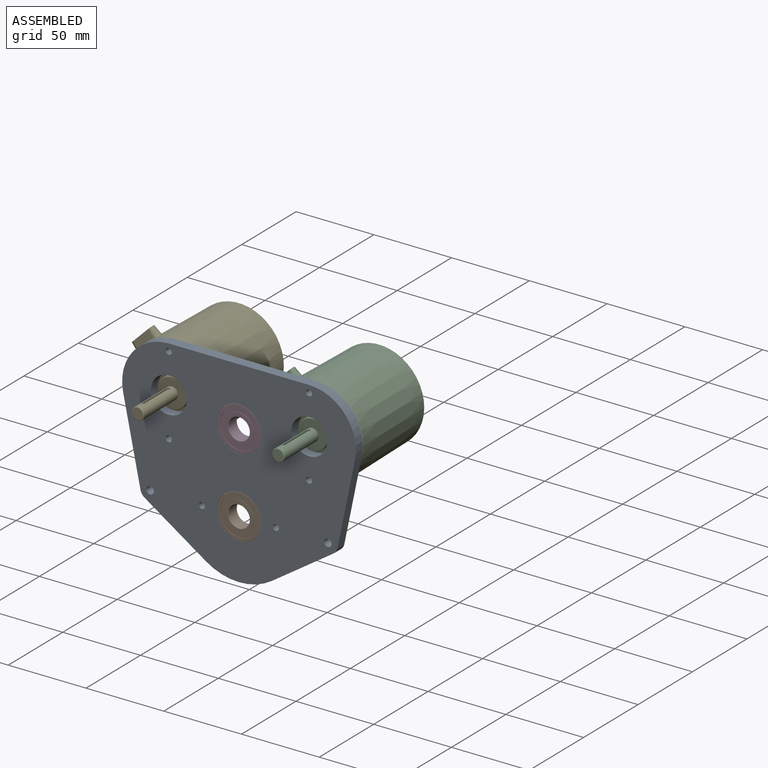
[diagram: assembled view]
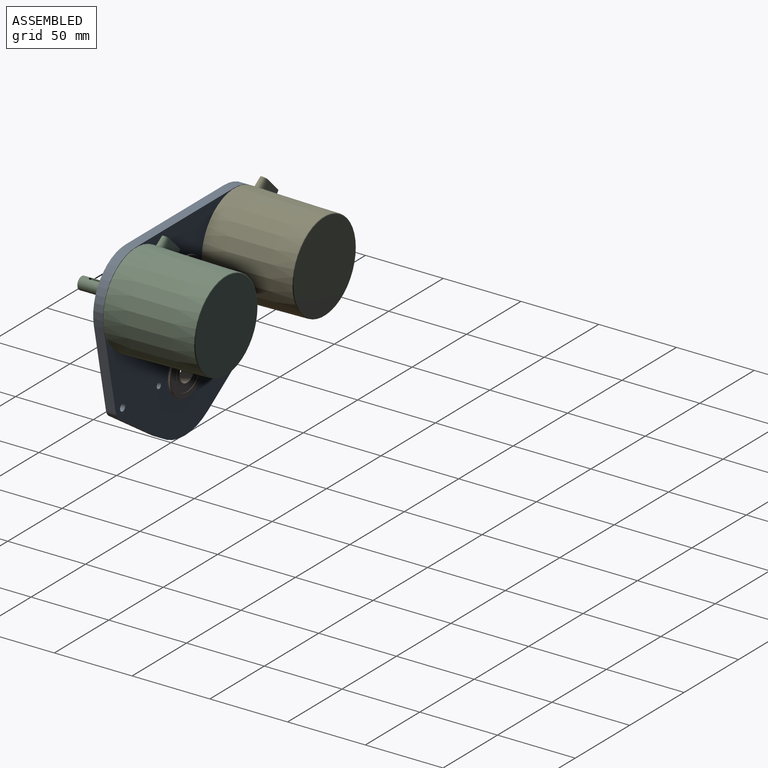
[diagram: assembled view, second angle]
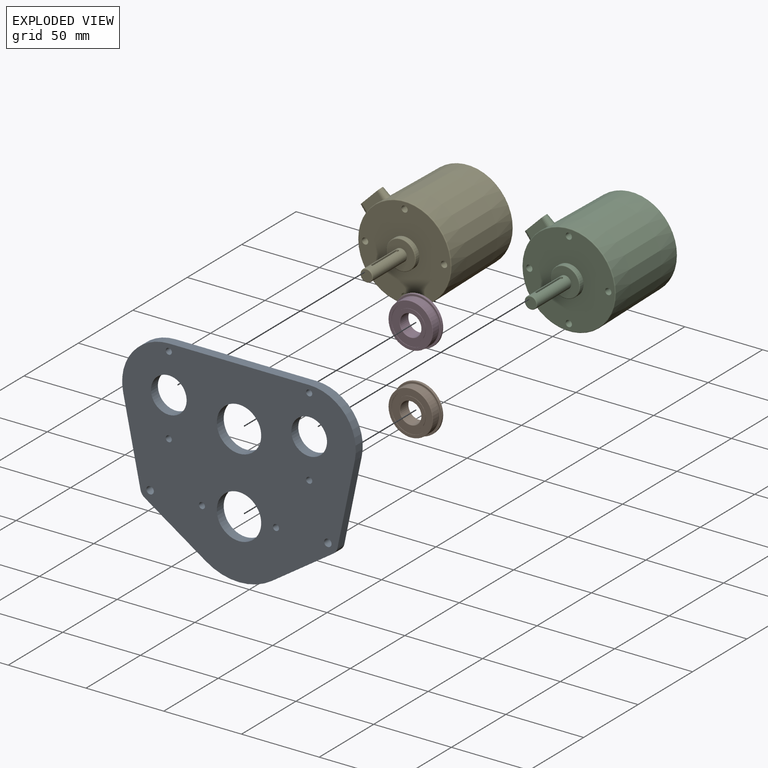
[diagram: exploded view]
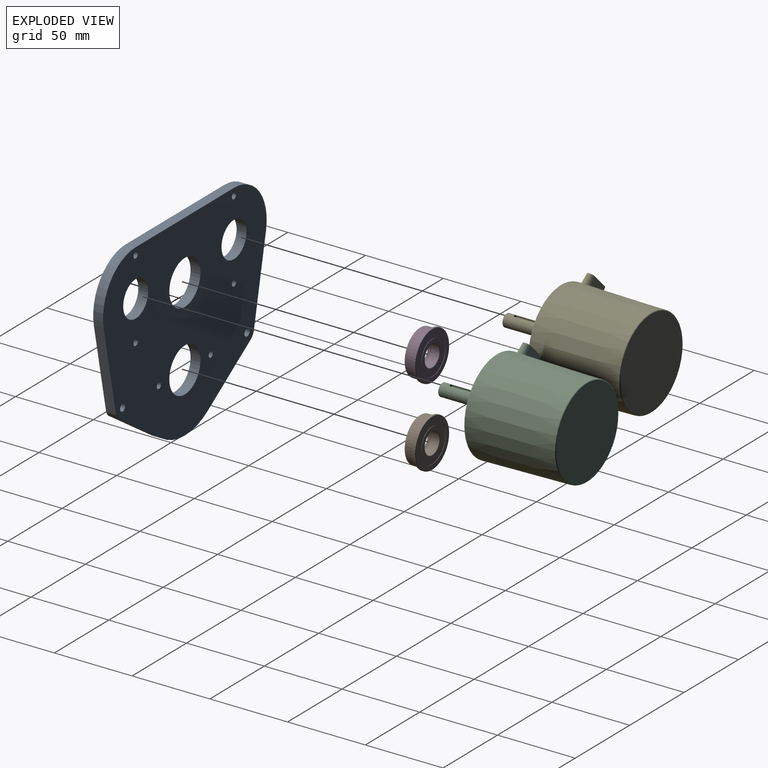
[diagram: exploded view, second angle]
ASSEMBLY  parts=5 mates=4
PART A: 24 faces, bbox 150.3x6.4x126.7 mm
  f0: plane 39.47x26.42mm, normal (-0.56,0,-0.83), area 301.6mm2, adj f1,f20,f22,f23
  f1: cylinder r=38.14mm len=42.43mm, axis (0,1,0), area 285.7mm2, adj f0,f2,f22,f23
  f2: plane 39.47x26.42mm, normal (0.56,0,-0.83), area 301.6mm2, adj f1,f3,f22,f23
  f3: cylinder r=6.35mm len=6.35mm, axis (0,1,0), area 31.3mm2, adj f2,f4,f22,f23
  f4: plane 53.77x11.15mm, normal (0.98,0,-0.2), area 348.7mm2, adj f3,f5,f22,f23
  f5: cylinder r=30mm len=36.09mm, axis (0,1,0), area 338.2mm2, adj f4,f6,f22,f23
  f6: plane 90.29x6.35mm, normal (0,0,1), area 573.3mm2, adj f5,f7,f22,f23
  f7: cylinder r=30mm len=36.09mm, axis (0,1,0), area 338.2mm2, adj f6,f8,f22,f23
  f8: plane 53.77x11.15mm, normal (-0.98,0,-0.2), area 348.7mm2, adj f7,f20,f22,f23
  f9: cylinder r=1.96mm len=6.35mm, axis (0,1,0), area 78mm2, adj f22,f23
  f10: cylinder r=1.96mm len=6.35mm, axis (0,1,0), area 78mm2, adj f22,f23
  f11: cylinder r=2.38mm len=6.35mm, axis (0,1,0), area 95mm2, adj f22,f23
  f12: cylinder r=14.29mm len=28.58mm, axis (0,1,0), area 570mm2, adj f22,f23
  f13: cylinder r=1.96mm len=6.35mm, axis (0,1,0), area 78mm2, adj f22,f23
  f14: cylinder r=1.96mm len=6.35mm, axis (0,1,0), area 78mm2, adj f22,f23
  f15: cylinder r=2.38mm len=6.35mm, axis (0,1,0), area 95mm2, adj f22,f23
  f16: cylinder r=11.47mm len=22.94mm, axis (0,1,0), area 457.6mm2, adj f22,f23
  f17: cylinder r=1.96mm len=6.35mm, axis (0,1,0), area 78mm2, adj f22,f23
  f18: cylinder r=1.96mm len=6.35mm, axis (0,1,0), area 78mm2, adj f22,f23
  f19: cylinder r=14.29mm len=28.58mm, axis (0,1,0), area 570mm2, adj f22,f23
  f20: cylinder r=6.35mm len=6.35mm, axis (0,1,0), area 31.3mm2, adj f0,f8,f22,f23
  f21: cylinder r=11.47mm len=22.94mm, axis (0,1,0), area 457.6mm2, adj f22,f23
  f22: plane 150.29x126.7mm, normal (0,-1,0), area 13078.5mm2, adj f0,f1,f2,f3,f4,f5,f6,f7
  f23: plane 150.29x126.7mm, normal (0,1,0), area 13078.5mm2, adj f0,f1,f2,f3,f4,f5,f6,f7
PART B: 21 faces, bbox 33.7x7.9x33.7 mm
  f0: torus R=14.29mm, axis (0,-1,0), area 46.4mm2, adj f10,f17
  f1: torus R=15.31mm, axis (0,1,0), area 38.2mm2, adj f9,f18
  f2: torus R=14.04mm, axis (0,-1,0), area 35mm2, adj f11,f16
  f3: torus R=15.31mm, axis (0,-1,0), area 38.2mm2, adj f9,f17
  f4: torus R=7.12mm, axis (0,1,0), area 17.2mm2, adj f6,f20
  f5: torus R=7.12mm, axis (0,-1,0), area 17.2mm2, adj f6,f14
  f6: cylinder r=6.88mm len=13.75mm, axis (0,-1,0), area 321.3mm2, adj f4,f5
  f7: cylinder r=9.6mm len=19.2mm, axis (0,-1,0), area 15.1mm2, adj f19,f20
  f8: cylinder r=12.29mm len=24.58mm, axis (0,-1,0), area 19.3mm2, adj f18,f19
  f9: cylinder r=15.56mm len=31.12mm, axis (0,-1,0), area 106.3mm2, adj f1,f3
  f10: cone r=14.29mm half-angle=30deg, axis (0,1,0), area 38.6mm2, adj f0,f11
  f11: cylinder r=14.29mm len=28.58mm, axis (0,-1,0), area 480.3mm2, adj f2,f10
  f12: cylinder r=12.29mm len=24.58mm, axis (0,-1,0), area 19.3mm2, adj f15,f16
  f13: cylinder r=9.6mm len=19.2mm, axis (0,-1,0), area 15.1mm2, adj f14,f15
  f14: plane 19.2x19.2mm, normal (0,1,0), area 130.2mm2, adj f5,f13
  f15: plane 24.58x24.58mm, normal (0,1,0), area 184.7mm2, adj f12,f13
  f16: plane 28.08x28.08mm, normal (0,1,0), area 144.7mm2, adj f2,f12
  f17: plane 30.62x30.62mm, normal (0,1,0), area 95.1mm2, adj f0,f3
  f18: plane 30.62x30.62mm, normal (0,-1,0), area 262.1mm2, adj f1,f8
  f19: plane 24.58x24.58mm, normal (0,-1,0), area 184.7mm2, adj f7,f8
  f20: plane 19.2x19.2mm, normal (0,-1,0), area 130.2mm2, adj f4,f7
PART C: 29 faces, bbox 65.1x93.4x65.1 mm
  f0: torus R=9.03mm, axis (0,-1,0), area 46.1mm2, adj f1,f2
  f1: cylinder r=9.53mm len=19.05mm, axis (0,1,0), area 179.5mm2, adj f0,f3
  f2: plane 18.05x18.05mm, normal (0,-1,0), area 205.6mm2, adj f0,f4
  f3: plane 58.98x58.98mm, normal (0,-1,0), area 2396.1mm2, adj f1,f5,f6,f7,f8,f9
  f4: cylinder r=4mm len=31mm, axis (0,1,0), area 732mm2, adj f2,f10,f11,f12,f13,f14
  f5: cylinder r=2.02mm len=5.5mm, axis (0,-1,0), area 69.8mm2, adj f3,f15
  f6: cylinder r=2.02mm len=5.5mm, axis (0,-1,0), area 69.8mm2, adj f3,f16
  f7: cylinder r=2.02mm len=5.5mm, axis (0,-1,0), area 69.8mm2, adj f3,f17
  f8: cylinder r=2.02mm len=5.5mm, axis (0,-1,0), area 69.8mm2, adj f3,f18
  f9: torus R=29.49mm, axis (0,-1,0), area 148.7mm2, adj f3,f19
  f10: cylinder r=1mm len=2mm, axis (0,0,1), area 3.4mm2, adj f4,f11,f13,f20
  f11: plane 22x1.02mm, normal (-1,0,0), area 22.5mm2, adj f4,f10,f12,f20
  f12: cylinder r=1mm len=2mm, axis (0,0,1), area 3.2mm2, adj f4,f11,f13,f20
  f13: plane 22x1.02mm, normal (1,0,0), area 22.5mm2, adj f4,f10,f12,f20
  f14: torus R=3.5mm, axis (0,-1,0), area 18.8mm2, adj f4,f21
  f15: cone r=2.02mm half-angle=59deg, axis (0,-1,0), area 14.9mm2, adj f5
  f16: cone r=2.02mm half-angle=59deg, axis (0,-1,0), area 14.9mm2, adj f6
  f17: cone r=2.02mm half-angle=59deg, axis (0,-1,0), area 14.9mm2, adj f7
  f18: cone r=2.02mm half-angle=59deg, axis (0,-1,0), area 14.9mm2, adj f8
  f19: cone r=30mm half-angle=1deg, axis (0,-1,0), area 10505mm2, adj f9,f22,f23,f24,f25,f26
  f20: plane 24x2mm, normal (0,0,1), area 47.1mm2, adj f10,f11,f12,f13
  f21: plane 7x7mm, normal (0,-1,0), area 38.5mm2, adj f14
  f22: cone r=2.8mm half-angle=5deg, axis (0.71,-0.02,-0.71), area 51.9mm2, adj f19,f23,f25,f28
  f23: plane 13.69x13.64mm, normal (-0.06,1,0.04), area 70.7mm2, adj f19,f22,f24,f28
  f24: cone r=2.8mm half-angle=5deg, axis (0.71,-0.02,-0.71), area 51.5mm2, adj f19,f23,f25,f28
  f25: plane 13.7x13.69mm, normal (-0.06,-0.99,0.09), area 70.6mm2, adj f19,f22,f24,f28
  f26: torus R=28.49mm, axis (0,-1,0), area 140.6mm2, adj f19,f27
  f27: plane 56.98x56.98mm, normal (0,1,0), area 2550.3mm2, adj f26
  f28: plane 12.82x12.81mm, normal (-0.71,0.02,0.71), area 80.9mm2, adj f22,f23,f24,f25
PART D: same geometry as B
PART E: same geometry as C
PLACE A t=(-5.66,4.94,-9.18)mm
PLACE B rot(axis=(1,0,0),180deg) t=(-5.66,2.56,-12.35)mm
PLACE C t=(39.49,4.94,46.22)mm
PLACE D rot(axis=(1,0,0),180deg) t=(-5.66,2.56,38.53)mm
PLACE E t=(-50.8,4.94,46.22)mm
MATE fastened D.f0 <-> A.f19  axis (0,-1,0) through (-5.66,4.94,38.53)mm
MATE fastened E.f0 <-> A.f7  axis (0,-1,0) through (-50.8,4.94,46.22)mm
MATE fastened B.f0 <-> A.f12  axis (0,-1,0) through (-5.66,4.94,-12.35)mm
MATE fastened C.f0 <-> A.f5  axis (0,-1,0) through (39.49,4.94,46.22)mm
